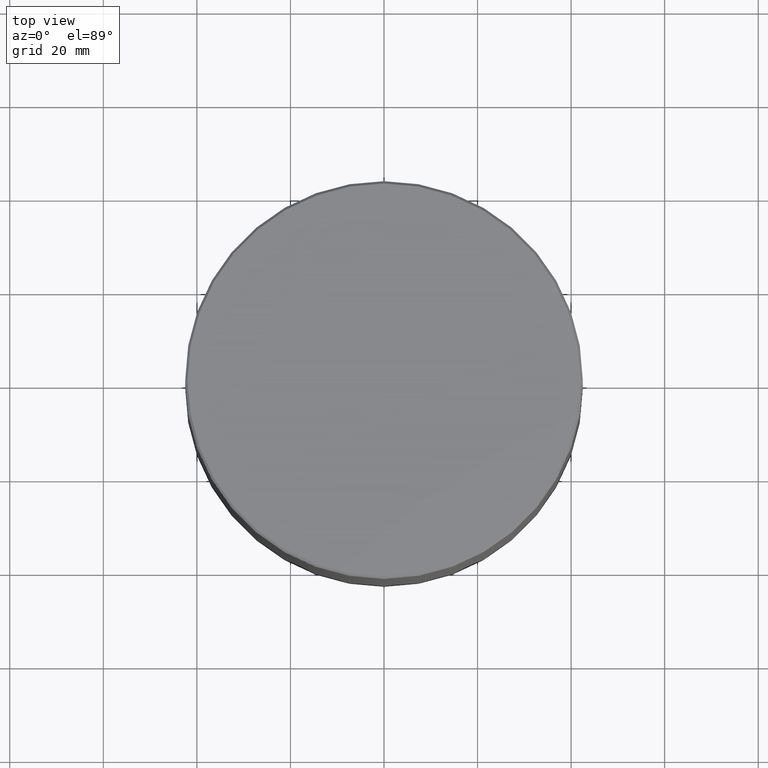
[diagram: clean part render]
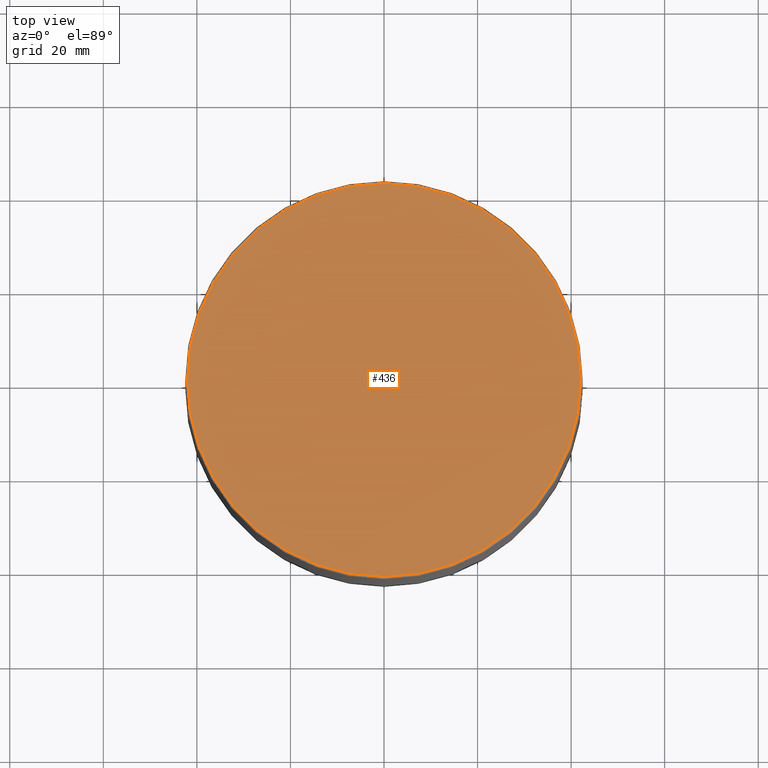
[diagram: same view with one face highlighted and labeled with its STEP entity id]
A machine part, top view. The second image highlights one B-rep face of the part: STEP entity #436.
In plain terms, the highlighted planar face has unit normal (0, -0, 1).
Its self-contained STEP definition (entity closure, byte-faithful):
#87 = CARTESIAN_POINT ( 'NONE',  ( 0.000000000000000000, 0.000000000000000000, 0.000000000000000000 ) ) ;
#94 = DIRECTION ( 'NONE',  ( 1.000000000000000000, 0.000000000000000000, 0.000000000000000000 ) ) ;
#132 = FACE_OUTER_BOUND ( 'NONE', #272, .T. ) ;
#185 = DIRECTION ( 'NONE',  ( -0.000000000000000000, -0.000000000000000000, 1.000000000000000000 ) ) ;
#206 = CARTESIAN_POINT ( 'NONE',  ( 0.000000000000000000, 0.000000000000000000, 0.000000000000000000 ) ) ;
#211 = CIRCLE ( 'NONE', #301, 41.99999999999999289 ) ;
#258 = AXIS2_PLACEMENT_3D ( 'NONE', #87, #390, #94 ) ;
#272 = EDGE_LOOP ( 'NONE', ( #383, #565 ) ) ;
#297 = DIRECTION ( 'NONE',  ( -0.000000000000000000, -0.000000000000000000, 1.000000000000000000 ) ) ;
#301 = AXIS2_PLACEMENT_3D ( 'NONE', #348, #185, #355 ) ;
#304 = EDGE_CURVE ( 'NONE', #530, #516, #455, .T. ) ;
#348 = CARTESIAN_POINT ( 'NONE',  ( 0.000000000000000000, 0.000000000000000000, 0.000000000000000000 ) ) ;
#355 = DIRECTION ( 'NONE',  ( 1.000000000000000000, 0.000000000000000000, 0.000000000000000000 ) ) ;
#383 = ORIENTED_EDGE ( 'NONE', *, *, #304, .T. ) ;
#388 = DIRECTION ( 'NONE',  ( 1.000000000000000000, 0.000000000000000000, 0.000000000000000000 ) ) ;
#390 = DIRECTION ( 'NONE',  ( 0.000000000000000000, -0.000000000000000000, 1.000000000000000000 ) ) ;
#436 = ADVANCED_FACE ( 'NONE', ( #132 ), #568, .T. ) ;
#455 = CIRCLE ( 'NONE', #534, 41.99999999999999289 ) ;
#494 = CARTESIAN_POINT ( 'NONE',  ( -41.99999999999999289, 0.000000000000000000, 0.000000000000000000 ) ) ;
#500 = EDGE_CURVE ( 'NONE', #516, #530, #211, .T. ) ;
#516 = VERTEX_POINT ( 'NONE', #521 ) ;
#521 = CARTESIAN_POINT ( 'NONE',  ( 41.99999999999999289, 5.174132726397566320E-15, 0.000000000000000000 ) ) ;
#530 = VERTEX_POINT ( 'NONE', #494 ) ;
#534 = AXIS2_PLACEMENT_3D ( 'NONE', #206, #297, #388 ) ;
#565 = ORIENTED_EDGE ( 'NONE', *, *, #500, .T. ) ;
#568 = PLANE ( 'NONE',  #258 ) ;